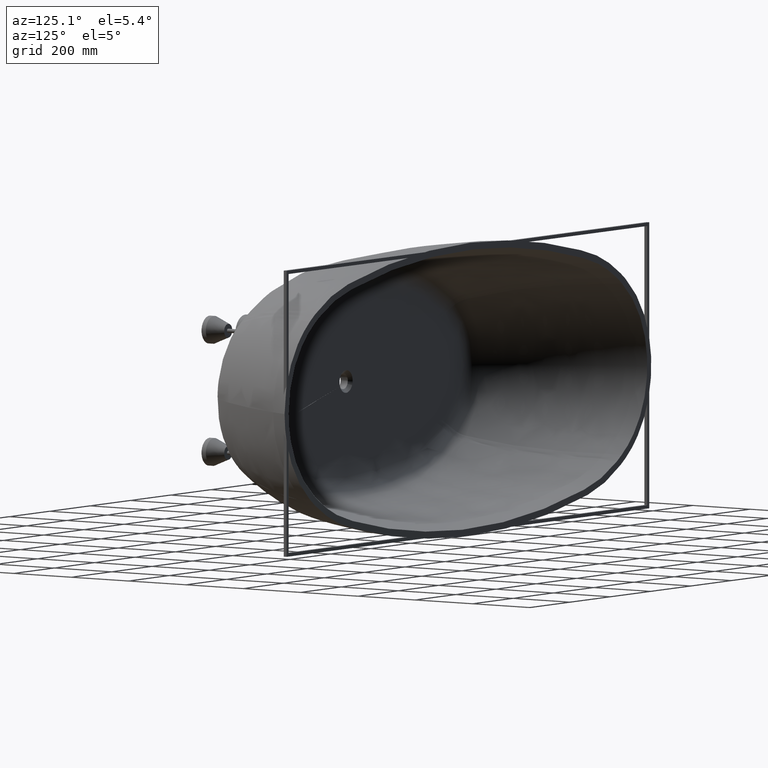
[diagram: clean part render]
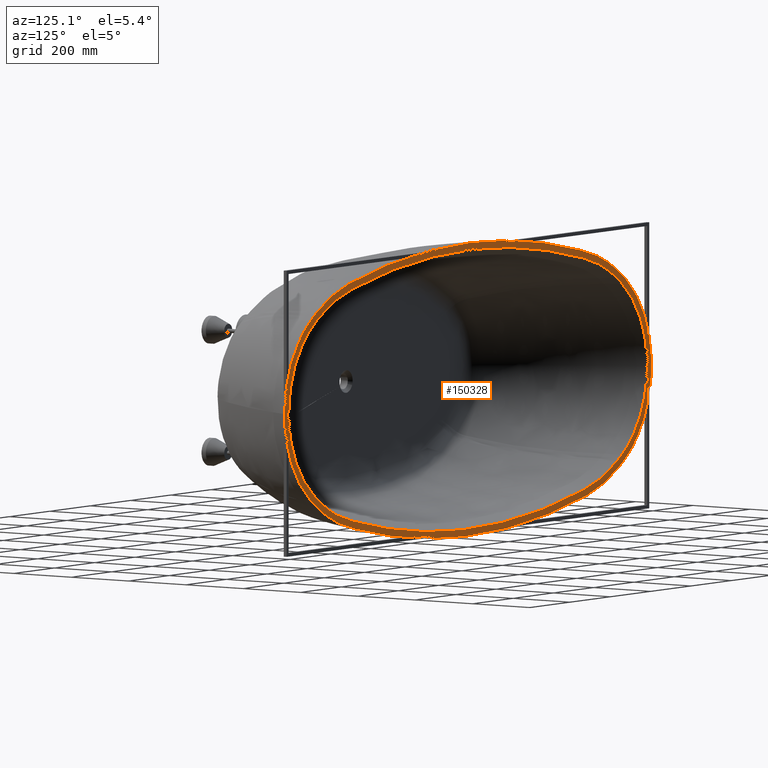
[diagram: same view with one face highlighted and labeled with its STEP entity id]
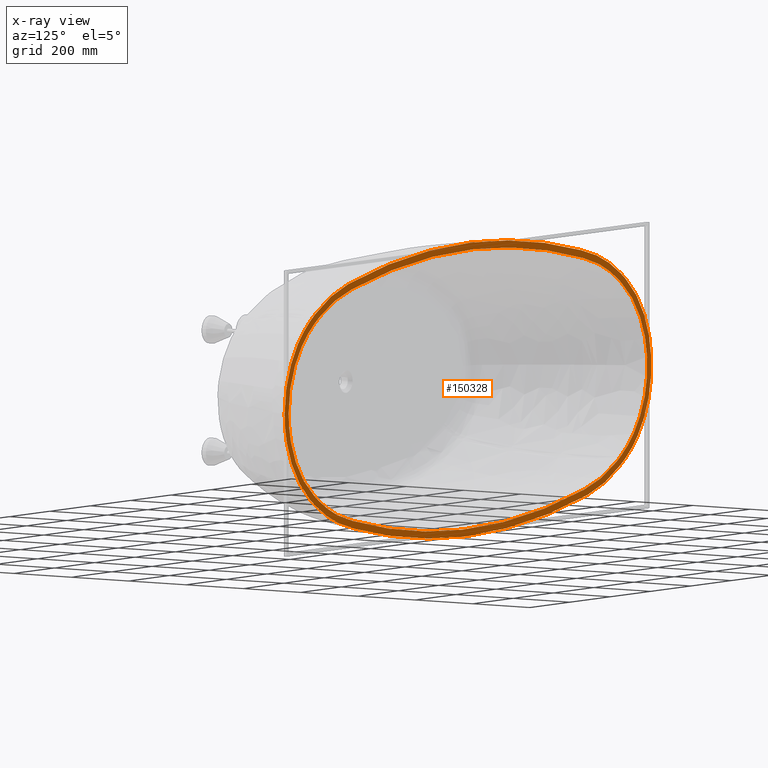
[diagram: x-ray of the same camera — body ghosted, the highlighted face saturated]
A machine part, auxiliary view. The second image highlights one B-rep face of the part: STEP entity #150328.
The next image is the same camera in x-ray: the body ghosted, the highlighted face saturated — about 0% of this face is hidden behind the body in this view.
In plain terms, the highlighted planar face has unit normal (0, 1, 0).
Its self-contained STEP definition (entity closure, byte-faithful):
#550 = CARTESIAN_POINT ( 'NONE',  ( 889.9999999999997726, 0.0000000000000000000, -7.813008401131620317 ) ) ;
#3620 = ORIENTED_EDGE ( 'NONE', *, *, #125054, .F. ) ;
#4029 = CARTESIAN_POINT ( 'NONE',  ( -587.2069341421050694, 0.0000000000000000000, -329.0705999088154385 ) ) ;
#4330 = CARTESIAN_POINT ( 'NONE',  ( 791.3905310018693626, 0.0000000000000000000, -249.7535948866556055 ) ) ;
#4470 = CARTESIAN_POINT ( 'NONE',  ( -763.1520700604692138, 0.0000000000000000000, 245.9321533621682079 ) ) ;
#4674 = CARTESIAN_POINT ( 'NONE',  ( 906.0292951633425673, 0.0000000000000000000, 50.62087967142603873 ) ) ;
#4906 = CARTESIAN_POINT ( 'NONE',  ( 319.3131465898853207, 0.0000000000000000000, -379.2608235900564182 ) ) ;
#4988 = B_SPLINE_CURVE_WITH_KNOTS ( 'NONE', 3,
 ( #57908, #140493, #112080, #98755, #166257, #31290, #4674, #17984, #112957, #126274, #29943, #59005, #34284 ),
 .UNSPECIFIED., .F., .F.,
 ( 4, 1, 1, 1, 1, 1, 1, 1, 1, 1, 4 ),
 ( 0.0000000000000000000, 0.005398302790372788706, 0.006747878487965763838, 0.008097454185558961015, 0.01012181773194864576, 0.01079660558074535537, 0.01349575697593174972, 0.05398302790372668664, 0.05735696714770960325, 0.06073090639169252680, 0.06747878487965836003 ),
 .UNSPECIFIED. ) ;
#5342 = CARTESIAN_POINT ( 'NONE',  ( 514.4941349859665252, 0.0000000000000000000, 367.6272770783308488 ) ) ;
#5637 = CARTESIAN_POINT ( 'NONE',  ( -883.2168709025518183, 0.0000000000000000000, 132.2889241970118235 ) ) ;
#6035 = CARTESIAN_POINT ( 'NONE',  ( 889.6218232531010699, 0.0000000000000000000, 17.53117531114963157 ) ) ;
#6216 = CARTESIAN_POINT ( 'NONE',  ( -432.2228156536378378, 0.0000000000000000000, 383.5637268056668745 ) ) ;
#6642 = CARTESIAN_POINT ( 'NONE',  ( 631.7350370917295095, 0.0000000000000000000, 318.0747106475319015 ) ) ;
#7077 = CARTESIAN_POINT ( 'NONE',  ( -775.0000000000001137, 0.0000000000000000000, -262.0478963853745995 ) ) ;
#7505 = CARTESIAN_POINT ( 'NONE',  ( -286.4609302756338138, 0.0000000000000000000, 383.4121656031119869 ) ) ;
#7660 = EDGE_CURVE ( 'NONE', #155108, #17808, #4988, .T. ) ;
#8179 = CARTESIAN_POINT ( 'NONE',  ( -758.1933449484882885, 0.0000000000000000000, 274.2389768462093684 ) ) ;
#8630 = CARTESIAN_POINT ( 'NONE',  ( 763.8753534057545949, 0.0000000000000000000, -270.2979495133494083 ) ) ;
#8777 = CARTESIAN_POINT ( 'NONE',  ( -600.1154229482709752, 0.0000000000000000000, -346.4837264108527961 ) ) ;
#9068 = CARTESIAN_POINT ( 'NONE',  ( 783.4307771013094452, 0.0000000000000000000, 255.8280958433930437 ) ) ;
#9544 = CARTESIAN_POINT ( 'NONE',  ( -738.4059817831089276, 0.0000000000000000000, 263.4909080596002013 ) ) ;
#9652 = CARTESIAN_POINT ( 'NONE',  ( 339.0768431634033959, 0.0000000000000000000, -396.7900770575605520 ) ) ;
#11404 = CARTESIAN_POINT ( 'NONE',  ( -769.4789590926411620, 0.0000000000000000000, -266.2335937313611112 ) ) ;
#12047 = B_SPLINE_CURVE_WITH_KNOTS ( 'NONE', 3,
 ( #138060, #16440, #70581, #124735 ),
 .UNSPECIFIED., .F., .F.,
 ( 4, 4 ),
 ( 0.5674787848796588596, 0.5698278338954969602 ),
 .UNSPECIFIED. ) ;
#13858 = CARTESIAN_POINT ( 'NONE',  ( 887.8996988289592309, 0.0000000000000000000, -35.81240038679592885 ) ) ;
#15684 = EDGE_LOOP ( 'NONE', ( #128647, #102274, #140087, #108828, #49857, #72895, #122596, #45269, #172403, #109281, #37729, #93961, #3620 ) ) ;
#16440 = CARTESIAN_POINT ( 'NONE',  ( -780.6598540475267782, 0.0000000000000000000, -257.9424528109815355 ) ) ;
#16658 = DIRECTION ( 'NONE',  ( -1.000000000000000000, 0.0000000000000000000, 3.209238430557037116E-15 ) ) ;
#17341 = CARTESIAN_POINT ( 'NONE',  ( -717.6932433290428435, 0.0000000000000000000, -276.6321071871795425 ) ) ;
#17542 = CARTESIAN_POINT ( 'NONE',  ( -777.8493932798656942, 0.0000000000000000000, 260.0163893447899568 ) ) ;
#17645 = EDGE_CURVE ( 'NONE', #64127, #96558, #110601, .T. ) ;
#17779 = CARTESIAN_POINT ( 'NONE',  ( -754.9665689504423653, 0.0000000000000000000, 252.0075134204169274 ) ) ;
#17808 = VERTEX_POINT ( 'NONE', #41168 ) ;
#17984 = CARTESIAN_POINT ( 'NONE',  ( 895.3363143709987071, 0.0000000000000000000, 113.9866341041921345 ) ) ;
#18219 = CARTESIAN_POINT ( 'NONE',  ( 160.8382427968108175, 0.0000000000000000000, -396.0654413112308703 ) ) ;
#18515 = CARTESIAN_POINT ( 'NONE',  ( 910.0000000000001137, 0.0000000000000000000, -8.041987703522320174 ) ) ;
#18657 = CARTESIAN_POINT ( 'NONE',  ( 649.6836254994555020, 0.0000000000000000000, 332.9302635221969240 ) ) ;
#18944 = CARTESIAN_POINT ( 'NONE',  ( -783.4307771013085357, 0.0000000000000000000, 255.8273457377489706 ) ) ;
#19086 = CARTESIAN_POINT ( 'NONE',  ( 737.0903473810011519, 0.0000000000000000000, -264.3621292739417754 ) ) ;
#19520 = CARTESIAN_POINT ( 'NONE',  ( -294.8353796076717117, 0.0000000000000000000, 402.5670555737781342 ) ) ;
#19951 = CARTESIAN_POINT ( 'NONE',  ( 728.1750335322358296, 0.0000000000000000000, 270.2659050836322194 ) ) ;
#20208 = CARTESIAN_POINT ( 'NONE',  ( 763.1520700604704643, 0.0000000000000000000, 245.9321533621673268 ) ) ;
#20815 = CARTESIAN_POINT ( 'NONE',  ( 3.421568584016654313E-10, 0.0000000000000000000, 403.9324184748755329 ) ) ;
#21251 = CARTESIAN_POINT ( 'NONE',  ( 749.5242002990831907, 0.0000000000000000000, -255.9563195706822114 ) ) ;
#21686 = CARTESIAN_POINT ( 'NONE',  ( -726.8271424620215839, 0.0000000000000000000, 271.0845578900930946 ) ) ;
#22095 = CARTESIAN_POINT ( 'NONE',  ( -689.3393098115927842, 0.0000000000000000000, -316.2088502245117070 ) ) ;
#22559 = CARTESIAN_POINT ( 'NONE',  ( 744.0026223081607668, 0.0000000000000000000, 259.7847781904962972 ) ) ;
#22586 = CARTESIAN_POINT ( 'NONE',  ( -863.0896100920674598, 0.0000000000000000000, 128.2270580749477631 ) ) ;
#22962 = CARTESIAN_POINT ( 'NONE',  ( 271.4381433447935024, 0.0000000000000000000, -405.2488875401405721 ) ) ;
#23250 = CARTESIAN_POINT ( 'NONE',  ( -749.5242002990929677, 0.0000000000000000000, -255.9563195706759871 ) ) ;
#23840 = CARTESIAN_POINT ( 'NONE',  ( 758.1933449484920402, 0.0000000000000000000, -274.2389768462069810 ) ) ;
#24955 = CARTESIAN_POINT ( 'NONE',  ( 760.4441334825949070, 0.0000000000000000000, 247.9878057571550585 ) ) ;
#26183 = VERTEX_POINT ( 'NONE', #97043 ) ;
#26288 = ORIENTED_EDGE ( 'NONE', *, *, #112237, .T. ) ;
#26305 = CARTESIAN_POINT ( 'NONE',  ( -769.4789590926304754, 0.0000000000000000000, 266.2335937313693535 ) ) ;
#27186 = CARTESIAN_POINT ( 'NONE',  ( 875.2561198878230471, 0.0000000000000000000, -110.6219516989343390 ) ) ;
#27710 = VERTEX_POINT ( 'NONE', #111053 ) ;
#28139 = ORIENTED_EDGE ( 'NONE', *, *, #106422, .T. ) ;
#29337 = B_SPLINE_CURVE_WITH_KNOTS ( 'NONE', 3,
 ( #51797, #105960, #160127, #38499 ),
 .UNSPECIFIED., .F., .F.,
 ( 4, 4 ),
 ( 0.9301721661045034839, 0.9325212151203412514 ),
 .UNSPECIFIED. ) ;
#29553 = CARTESIAN_POINT ( 'NONE',  ( 763.1520700604693275, 0.0000000000000000000, -245.9321533621682363 ) ) ;
#29943 = CARTESIAN_POINT ( 'NONE',  ( 802.8407740260263381, 0.0000000000000000000, 240.1346449953277045 ) ) ;
#29977 = PLANE ( 'NONE',  #163224 ) ;
#31290 = CARTESIAN_POINT ( 'NONE',  ( 907.1666489326321425, 0.0000000000000000000, 42.78032932271930378 ) ) ;
#31525 = CARTESIAN_POINT ( 'NONE',  ( -263.7253724180439463, 0.0000000000000000000, -385.9639816627826576 ) ) ;
#31562 = CARTESIAN_POINT ( 'NONE',  ( 775.0000000000003411, 0.0000000000000000000, 262.0478963853746563 ) ) ;
#31822 = CARTESIAN_POINT ( 'NONE',  ( 907.9120967166168157, 0.0000000000000000000, -36.87557192136411288 ) ) ;
#31964 = CARTESIAN_POINT ( 'NONE',  ( 747.8063397035991784, 0.0000000000000000000, 281.4433785792498952 ) ) ;
#32393 = CARTESIAN_POINT ( 'NONE',  ( 670.6584065737760056, 0.0000000000000000000, -302.7485338797424106 ) ) ;
#32502 = EDGE_CURVE ( 'NONE', #141121, #155108, #164134, .T. ) ;
#32613 = CARTESIAN_POINT ( 'NONE',  ( 754.9665689504430475, 0.0000000000000000000, 252.0075134204163305 ) ) ;
#32831 = CARTESIAN_POINT ( 'NONE',  ( 1.883701528093695288E-10, 0.0000000000000000000, 424.1328223933700770 ) ) ;
#33116 = CARTESIAN_POINT ( 'NONE',  ( -783.4307771013093316, 0.0000000000000000000, -255.8273457377484021 ) ) ;
#33515 = CARTESIAN_POINT ( 'NONE',  ( 796.8165481607913989, 0.0000000000000000000, 218.2637288915561840 ) ) ;
#33639 = EDGE_CURVE ( 'NONE', #53116, #27710, #106880, .T. ) ;
#33692 = CARTESIAN_POINT ( 'NONE',  ( -746.4369453019442062, 0.0000000000000000000, 282.3168204793840914 ) ) ;
#34118 = CARTESIAN_POINT ( 'NONE',  ( 286.4609302756594502, 0.0000000000000000000, 383.4121656031085763 ) ) ;
#34284 = CARTESIAN_POINT ( 'NONE',  ( 783.4307771013094452, 0.0000000000000000000, 255.8280958433930437 ) ) ;
#34987 = CARTESIAN_POINT ( 'NONE',  ( -631.7350370917281452, 0.0000000000000000000, 318.0747106475319583 ) ) ;
#35959 = B_SPLINE_CURVE_WITH_KNOTS ( 'NONE', 3,
 ( #42885, #97009, #151189, #29553 ),
 .UNSPECIFIED., .F., .F.,
 ( 4, 4 ),
 ( 0.9301721661045034839, 0.9325212151203412514 ),
 .UNSPECIFIED. ) ;
#36267 = CARTESIAN_POINT ( 'NONE',  ( -165.5520005130076129, 0.0000000000000000000, -415.8650200350170394 ) ) ;
#37151 = CARTESIAN_POINT ( 'NONE',  ( 735.7575132718345685, 0.0000000000000000000, -289.0545276810667588 ) ) ;
#37729 = ORIENTED_EDGE ( 'NONE', *, *, #160828, .F. ) ;
#38499 = CARTESIAN_POINT ( 'NONE',  ( 783.4307771013080810, 0.0000000000000000000, -255.8280958433941237 ) ) ;
#40505 = CARTESIAN_POINT ( 'NONE',  ( 782.5614730565411037, 0.0000000000000000000, -231.2520088400853524 ) ) ;
#40521 = CARTESIAN_POINT ( 'NONE',  ( 754.9665689504428201, 0.0000000000000000000, -252.0075134204164442 ) ) ;
#41168 = CARTESIAN_POINT ( 'NONE',  ( 783.4307771013094452, 0.0000000000000000000, 255.8280958433930437 ) ) ;
#42119 = ORIENTED_EDGE ( 'NONE', *, *, #151112, .T. ) ;
#42885 = CARTESIAN_POINT ( 'NONE',  ( 754.9665689504428201, 0.0000000000000000000, -252.0075134204164442 ) ) ;
#43506 = CARTESIAN_POINT ( 'NONE',  ( 775.0000000000000000, 0.0000000000000000000, -262.0478963853747132 ) ) ;
#44180 = CARTESIAN_POINT ( 'NONE',  ( -754.9665689504419106, 0.0000000000000000000, -252.0075134204169842 ) ) ;
#44275 = CARTESIAN_POINT ( 'NONE',  ( 783.4307771013080810, 0.0000000000000000000, -255.8280958433941237 ) ) ;
#44380 = CARTESIAN_POINT ( 'NONE',  ( 758.1933449485189840, 0.0000000000000000000, 274.2389768461886206 ) ) ;
#44858 = CARTESIAN_POINT ( 'NONE',  ( -329.4539316918798590, 0.0000000000000000000, -377.9152564980759053 ) ) ;
#45159 = CARTESIAN_POINT ( 'NONE',  ( 895.3363143709980250, 0.0000000000000000000, -113.9866341041927456 ) ) ;
#45269 = ORIENTED_EDGE ( 'NONE', *, *, #96986, .F. ) ;
#45732 = CARTESIAN_POINT ( 'NONE',  ( 583.2068326230753428, 0.0000000000000000000, -330.0477707294017478 ) ) ;
#46170 = CARTESIAN_POINT ( 'NONE',  ( 294.8353796074355273, 0.0000000000000000000, 402.5670555738147982 ) ) ;
#46454 = CARTESIAN_POINT ( 'NONE',  ( -883.2168709025482940, 0.0000000000000000000, -132.2889241970185878 ) ) ;
#46852 = CARTESIAN_POINT ( 'NONE',  ( 886.0064480515451351, 0.0000000000000000000, 49.15162373814839469 ) ) ;
#47027 = CARTESIAN_POINT ( 'NONE',  ( -649.6836254994561841, 0.0000000000000000000, 332.9302635221959576 ) ) ;
#47456 = CARTESIAN_POINT ( 'NONE',  ( 419.9756767674702473, 0.0000000000000000000, 365.3301231239591971 ) ) ;
#48331 = CARTESIAN_POINT ( 'NONE',  ( -499.9469674150249148, 0.0000000000000000000, 350.1662765972210991 ) ) ;
#48358 = CARTESIAN_POINT ( 'NONE',  ( -789.6773489195265938, 0.0000000000000000000, 227.0592726093456974 ) ) ;
#48531 = VERTEX_POINT ( 'NONE', #43506 ) ;
#49583 = CARTESIAN_POINT ( 'NONE',  ( -328.6417849886043427, 0.0000000000000000000, -398.2042012561151409 ) ) ;
#49857 = ORIENTED_EDGE ( 'NONE', *, *, #54133, .F. ) ;
#50279 = EDGE_CURVE ( 'NONE', #89344, #107960, #79520, .T. ) ;
#50448 = CARTESIAN_POINT ( 'NONE',  ( 604.2149605995716684, 0.0000000000000000000, -345.4148569647218778 ) ) ;
#51797 = CARTESIAN_POINT ( 'NONE',  ( 775.0000000000000000, 0.0000000000000000000, -262.0478963853747132 ) ) ;
#53116 = VERTEX_POINT ( 'NONE', #116197 ) ;
#54133 = EDGE_CURVE ( 'NONE', #114465, #124283, #77898, .T. ) ;
#54663 = CARTESIAN_POINT ( 'NONE',  ( 889.9999999999997726, 0.0000000000000000000, 5.030698080332740574E-14 ) ) ;
#57466 = CARTESIAN_POINT ( 'NONE',  ( -763.1520700604693275, 0.0000000000000000000, -245.9321533621679521 ) ) ;
#57541 = EDGE_CURVE ( 'NONE', #161668, #114465, #168930, .T. ) ;
#57667 = CARTESIAN_POINT ( 'NONE',  ( 775.0000000000003411, 0.0000000000000000000, 262.0478963853746563 ) ) ;
#57908 = CARTESIAN_POINT ( 'NONE',  ( 910.0000000000001137, 0.0000000000000000000, -1.387778780781445676E-14 ) ) ;
#58141 = CARTESIAN_POINT ( 'NONE',  ( -583.2068326230723869, 0.0000000000000000000, -330.0477707294020320 ) ) ;
#58437 = CARTESIAN_POINT ( 'NONE',  ( 802.8407740260239507, 0.0000000000000000000, -240.1346449953288129 ) ) ;
#59005 = CARTESIAN_POINT ( 'NONE',  ( 791.3905310018714090, 0.0000000000000000000, 249.7535948866545823 ) ) ;
#59026 = CARTESIAN_POINT ( 'NONE',  ( 329.4539316918697978, 0.0000000000000000000, -377.9152564980772127 ) ) ;
#59463 = CARTESIAN_POINT ( 'NONE',  ( 432.2228156534974914, 0.0000000000000000000, 383.5637268056955236 ) ) ;
#59749 = CARTESIAN_POINT ( 'NONE',  ( -904.1549730925355561, 0.0000000000000000000, 70.19633892110206830 ) ) ;
#60152 = CARTESIAN_POINT ( 'NONE',  ( 888.6151156526157138, 0.0000000000000000000, 29.09297547376566584 ) ) ;
#60329 = CARTESIAN_POINT ( 'NONE',  ( -514.4941349859661841, 0.0000000000000000000, 367.6272770783294845 ) ) ;
#60762 = CARTESIAN_POINT ( 'NONE',  ( 587.2069341421073432, 0.0000000000000000000, 329.0705999088153249 ) ) ;
#61073 = B_SPLINE_CURVE_WITH_KNOTS ( 'NONE', 3,
 ( #93758, #147939, #26305, #80421 ),
 .UNSPECIFIED., .F., .F.,
 ( 4, 4 ),
 ( 0.4255214128532844864, 0.4301721661045039280 ),
 .UNSPECIFIED. ) ;
#61635 = CARTESIAN_POINT ( 'NONE',  ( -319.3131465898812280, 0.0000000000000000000, 379.2608235900573845 ) ) ;
#62324 = CARTESIAN_POINT ( 'NONE',  ( -884.1175909659926901, 0.0000000000000000000, 68.19584851435453743 ) ) ;
#62757 = CARTESIAN_POINT ( 'NONE',  ( 769.4789590926322944, 0.0000000000000000000, -266.2335937313684440 ) ) ;
#62903 = CARTESIAN_POINT ( 'NONE',  ( -514.4941349859641377, 0.0000000000000000000, -367.6272770783298256 ) ) ;
#63188 = CARTESIAN_POINT ( 'NONE',  ( 780.6598540475268919, 0.0000000000000000000, 257.9427309127087824 ) ) ;
#63662 = CARTESIAN_POINT ( 'NONE',  ( -744.0026223081408716, 0.0000000000000000000, 259.7847781905100533 ) ) ;
#63768 = CARTESIAN_POINT ( 'NONE',  ( 432.2228156536407369, 0.0000000000000000000, -383.5637268056659650 ) ) ;
#64127 = VERTEX_POINT ( 'NONE', #154262 ) ;
#64444 = VERTEX_POINT ( 'NONE', #32613 ) ;
#65043 = CARTESIAN_POINT ( 'NONE',  ( -758.1933449485205756, 0.0000000000000000000, -274.2389768461865742 ) ) ;
#65135 = VERTEX_POINT ( 'NONE', #140935 ) ;
#65532 = CARTESIAN_POINT ( 'NONE',  ( -763.8753534057736942, 0.0000000000000000000, -270.2979495133355385 ) ) ;
#66537 = EDGE_CURVE ( 'NONE', #134032, #124955, #61073, .T. ) ;
#67995 = CARTESIAN_POINT ( 'NONE',  ( 888.6151156526157138, 0.0000000000000000000, -29.09297547376572979 ) ) ;
#70579 = EDGE_CURVE ( 'NONE', #151074, #92448, #156359, .T. ) ;
#70581 = CARTESIAN_POINT ( 'NONE',  ( -777.8493932798661490, 0.0000000000000000000, -260.0163893447896726 ) ) ;
#70798 = CARTESIAN_POINT ( 'NONE',  ( 889.9999999999997726, 0.0000000000000000000, 5.030698080332740574E-14 ) ) ;
#71475 = CARTESIAN_POINT ( 'NONE',  ( -670.6584065737750961, 0.0000000000000000000, -302.7485338797417853 ) ) ;
#71677 = CARTESIAN_POINT ( 'NONE',  ( -780.6598540475260961, 0.0000000000000000000, 257.9424528109819335 ) ) ;
#71914 = CARTESIAN_POINT ( 'NONE',  ( -757.7154549982997196, 0.0000000000000000000, 250.0130108742785069 ) ) ;
#72348 = CARTESIAN_POINT ( 'NONE',  ( 263.7253724180339987, 0.0000000000000000000, -385.9639816627836240 ) ) ;
#72642 = CARTESIAN_POINT ( 'NONE',  ( 910.0000000000001137, 0.0000000000000000000, -1.387778780781445676E-14 ) ) ;
#72730 = EDGE_CURVE ( 'NONE', #65135, #53116, #94914, .T. ) ;
#72785 = CARTESIAN_POINT ( 'NONE',  ( 604.2149605995709862, 0.0000000000000000000, 345.4148569647225031 ) ) ;
#72788 = CARTESIAN_POINT ( 'NONE',  ( 758.1933449485189840, 0.0000000000000000000, 274.2389768461886206 ) ) ;
#72895 = ORIENTED_EDGE ( 'NONE', *, *, #57541, .F. ) ;
#73026 = EDGE_LOOP ( 'NONE', ( #26288, #113600, #124346, #141987, #142456, #129653, #28139, #127572, #42119, #113202, #115127, #167034, #111907 ) ) ;
#73081 = CARTESIAN_POINT ( 'NONE',  ( -809.9632901031801566, 0.0000000000000000000, 235.5744896202533596 ) ) ;
#73224 = CARTESIAN_POINT ( 'NONE',  ( 738.4059817831131340, 0.0000000000000000000, -263.4909080595970181 ) ) ;
#73234 = VERTEX_POINT ( 'NONE', #157494 ) ;
#73336 = B_SPLINE_CURVE_WITH_KNOTS ( 'NONE', 3,
 ( #57466, #111639, #165813, #44180 ),
 .UNSPECIFIED., .F., .F.,
 ( 4, 4 ),
 ( 0.5674787848796588596, 0.5698278338954969602 ),
 .UNSPECIFIED. ) ;
#73376 = EDGE_CURVE ( 'NONE', #64444, #65135, #120900, .T. ) ;
#73481 = CARTESIAN_POINT ( 'NONE',  ( 889.9999999999997726, 0.0000000000000000000, 5.030698080332740574E-14 ) ) ;
#73657 = CARTESIAN_POINT ( 'NONE',  ( -328.6417849888144360, 0.0000000000000000000, 398.2042012560812054 ) ) ;
#74088 = CARTESIAN_POINT ( 'NONE',  ( 717.6932433290425024, 0.0000000000000000000, 276.6321071871803383 ) ) ;
#74953 = CARTESIAN_POINT ( 'NONE',  ( -160.8382427968112438, 0.0000000000000000000, 396.0654413112307566 ) ) ;
#75384 = CARTESIAN_POINT ( 'NONE',  ( 754.9665689504428201, 0.0000000000000000000, -252.0075134204164442 ) ) ;
#75511 = B_SPLINE_CURVE_WITH_KNOTS ( 'NONE', 3,
 ( #153612, #31964, #86097, #140284, #18657, #72785, #126942, #5342, #59463, #113629, #167797, #46170, #100303, #154479, #32831, #86963, #141149, #19520, #73657, #127804, #6216, #60329, #114494, #168659, #47027, #101164, #155338, #33692, #87830, #142016 ),
 .UNSPECIFIED., .F., .F.,
 ( 4, 2, 2, 2, 2, 2, 2, 1, 2, 2, 2, 2, 2, 2, 1, 4 ),
 ( 0.07447858714670785307, 0.08298040455451123620, 0.1118252206610561572, 0.1146707433340537763, 0.1710262600804101085, 0.1781307950221866498, 0.1940285449815298269, 0.2499999999999999722, 0.3059714550184710613, 0.3218692049778052455, 0.3289737399195896694, 0.3853292566659466400, 0.3881747793389446199, 0.4170195954454887222, 0.4244281336001926030, 0.4255214128532844864 ),
 .UNSPECIFIED. ) ;
#75817 = CARTESIAN_POINT ( 'NONE',  ( -737.0903473809985371, 0.0000000000000000000, 264.3621292739439923 ) ) ;
#75979 = EDGE_CURVE ( 'NONE', #81620, #26183, #35959, .T. ) ;
#76221 = CARTESIAN_POINT ( 'NONE',  ( -649.6836254994561841, 0.0000000000000000000, -332.9302635221961850 ) ) ;
#76506 = CARTESIAN_POINT ( 'NONE',  ( -774.9999999999998863, 0.0000000000000000000, 262.0478963853747700 ) ) ;
#76685 = CARTESIAN_POINT ( 'NONE',  ( 738.4059817831379178, 0.0000000000000000000, 263.4909080595801925 ) ) ;
#76875 = B_SPLINE_CURVE_WITH_KNOTS ( 'NONE', 3,
 ( #144871, #23250, #77376, #131544 ),
 .UNSPECIFIED., .F., .F.,
 ( 4, 4 ),
 ( 0.5698278338954969602, 0.5744785871467075200 ),
 .UNSPECIFIED. ) ;
#77086 = CARTESIAN_POINT ( 'NONE',  ( 294.8353796076738718, 0.0000000000000000000, -402.5670555737783047 ) ) ;
#77376 = CARTESIAN_POINT ( 'NONE',  ( -744.0026223081613352, 0.0000000000000000000, -259.7847781904955013 ) ) ;
#77898 = B_SPLINE_CURVE_WITH_KNOTS ( 'NONE', 3,
 ( #170373, #89531, #143718, #22095, #76221, #130384, #8777, #62903, #117062, #171238, #49583, #103729, #157895, #36267, #90390, #144580, #22962, #77086, #131253, #9652, #63768, #117943, #172118, #50448, #104604, #158775, #37151, #91268, #145458, #23840 ),
 .UNSPECIFIED., .F., .F.,
 ( 4, 2, 2, 2, 2, 2, 2, 1, 2, 2, 2, 2, 2, 2, 1, 4 ),
 ( 0.5744785871467075200, 0.5829804045545111668, 0.6118252206610563793, 0.6146707433340542481, 0.6710262600804102195, 0.6781307950221867609, 0.6940285449815295493, 0.7499999999999941158, 0.8059714550184705617, 0.8218692049778056896, 0.8289737399195898915, 0.8853292566659464180, 0.8881747793389440648, 0.9170195954454888332, 0.9244281336001918259, 0.9255214128532850415 ),
 .UNSPECIFIED. ) ;
#79077 = CARTESIAN_POINT ( 'NONE',  ( 757.7154549983007428, 0.0000000000000000000, 250.0130108742777395 ) ) ;
#79520 = B_SPLINE_CURVE_WITH_KNOTS ( 'NONE', 3,
 ( #57667, #111840, #166018, #44380 ),
 .UNSPECIFIED., .F., .F.,
 ( 4, 4 ),
 ( 0.06982783389549643283, 0.07447858714670785307 ),
 .UNSPECIFIED. ) ;
#80421 = CARTESIAN_POINT ( 'NONE',  ( -774.9999999999998863, 0.0000000000000000000, 262.0478963853747700 ) ) ;
#81296 = CARTESIAN_POINT ( 'NONE',  ( 886.0064480515453624, 0.0000000000000000000, -49.15162373814861496 ) ) ;
#81620 = VERTEX_POINT ( 'NONE', #40521 ) ;
#84102 = CARTESIAN_POINT ( 'NONE',  ( 910.0000000000001137, 0.0000000000000000000, -1.387778780781445676E-14 ) ) ;
#84781 = CARTESIAN_POINT ( 'NONE',  ( -738.4059817831401915, 0.0000000000000000000, -263.4909080595790556 ) ) ;
#85661 = CARTESIAN_POINT ( 'NONE',  ( -160.8382427974896416, 0.0000000000000000000, -396.0654413111638519 ) ) ;
#85958 = CARTESIAN_POINT ( 'NONE',  ( 908.6234101523943991, 0.0000000000000000000, -29.95410958223365938 ) ) ;
#86097 = CARTESIAN_POINT ( 'NONE',  ( 737.1573301948030803, 0.0000000000000000000, 288.2356446266927605 ) ) ;
#86530 = CARTESIAN_POINT ( 'NONE',  ( 716.3163531957522991, 0.0000000000000000000, -277.3966351989786858 ) ) ;
#86963 = CARTESIAN_POINT ( 'NONE',  ( -165.5520005126332990, 0.0000000000000000000, 415.8650200350557498 ) ) ;
#87001 = EDGE_CURVE ( 'NONE', #150333, #104821, #133470, .T. ) ;
#87649 = CARTESIAN_POINT ( 'NONE',  ( 782.5614730565406489, 0.0000000000000000000, 231.2520088400843861 ) ) ;
#87830 = CARTESIAN_POINT ( 'NONE',  ( -756.8576426167012414, 0.0000000000000000000, 275.1654167552181889 ) ) ;
#88257 = CARTESIAN_POINT ( 'NONE',  ( 263.7253724180449126, 0.0000000000000000000, 385.9639816627829418 ) ) ;
#88698 = CARTESIAN_POINT ( 'NONE',  ( 738.4059817831131340, 0.0000000000000000000, -263.4909080595970181 ) ) ;
#89129 = CARTESIAN_POINT ( 'NONE',  ( -670.6584065737737319, 0.0000000000000000000, 302.7485338797433201 ) ) ;
#89344 = VERTEX_POINT ( 'NONE', #31562 ) ;
#89531 = CARTESIAN_POINT ( 'NONE',  ( -747.8063397035983826, 0.0000000000000000000, -281.4433785792480762 ) ) ;
#89990 = CARTESIAN_POINT ( 'NONE',  ( 754.9665689504430475, 0.0000000000000000000, 252.0075134204163305 ) ) ;
#90390 = CARTESIAN_POINT ( 'NONE',  ( -1.889217948747301534E-10, 0.0000000000000000000, -424.1328223933698496 ) ) ;
#91268 = CARTESIAN_POINT ( 'NONE',  ( 746.4369453019448883, 0.0000000000000000000, -282.3168204793826135 ) ) ;
#92448 = VERTEX_POINT ( 'NONE', #141646 ) ;
#93758 = CARTESIAN_POINT ( 'NONE',  ( -758.1933449484882885, 0.0000000000000000000, 274.2389768462093684 ) ) ;
#93961 = ORIENTED_EDGE ( 'NONE', *, *, #50279, .F. ) ;
#94230 = B_SPLINE_CURVE_WITH_KNOTS ( 'NONE', 3,
 ( #17779, #71914, #126071, #4470 ),
 .UNSPECIFIED., .F., .F.,
 ( 4, 4 ),
 ( 0.4301721661045039280, 0.4325212151203419175 ),
 .UNSPECIFIED. ) ;
#94636 = CARTESIAN_POINT ( 'NONE',  ( 796.8165481607926495, 0.0000000000000000000, -218.2637288915571503 ) ) ;
#94734 = B_SPLINE_CURVE_WITH_KNOTS ( 'NONE', 3,
 ( #139167, #17542, #71677, #125837 ),
 .UNSPECIFIED., .F., .F.,
 ( 4, 4 ),
 ( 0.4301721661045039280, 0.4325212151203419175 ),
 .UNSPECIFIED. ) ;
#94914 = B_SPLINE_CURVE_WITH_KNOTS ( 'NONE', 3,
 ( #141583, #19951, #74088, #128235, #6642, #60762, #114922, #169092, #47456, #101594, #155762, #34118, #88257, #142445, #20815, #74953, #129102, #7505, #61635, #115790, #169967, #48331, #102463, #156631, #34987, #89129, #143314, #21686, #75817, #129978 ),
 .UNSPECIFIED., .F., .F.,
 ( 4, 2, 2, 2, 2, 2, 2, 1, 2, 2, 2, 2, 2, 2, 1, 4 ),
 ( 0.07447858714670781144, 0.08298040455451119457, 0.1118252206610561295, 0.1146707433340537485, 0.1710262600804100530, 0.1781307950221866498, 0.1940285449815297714, 0.2499999999999999445, 0.3059714550184710613, 0.3218692049778053010, 0.3289737399195896694, 0.3853292566659466400, 0.3881747793389446199, 0.4170195954454887222, 0.4244281336001926030, 0.4255214128532844864 ),
 .UNSPECIFIED. ) ;
#96558 = VERTEX_POINT ( 'NONE', #126357 ) ;
#96986 = EDGE_CURVE ( 'NONE', #100108, #101907, #115296, .T. ) ;
#97009 = CARTESIAN_POINT ( 'NONE',  ( 757.7154549983002880, 0.0000000000000000000, -250.0130108742781943 ) ) ;
#97043 = CARTESIAN_POINT ( 'NONE',  ( 763.1520700604693275, 0.0000000000000000000, -245.9321533621682363 ) ) ;
#97436 = FACE_BOUND ( 'NONE', #73026, .T. ) ;
#98755 = CARTESIAN_POINT ( 'NONE',  ( 908.6234101523943991, 0.0000000000000000000, 29.95410958223345688 ) ) ;
#98990 = CARTESIAN_POINT ( 'NONE',  ( -319.3131465899062391, 0.0000000000000000000, -379.2608235900536329 ) ) ;
#99290 = CARTESIAN_POINT ( 'NONE',  ( 906.0292951633425673, 0.0000000000000000000, -50.62087967142643663 ) ) ;
#99479 = CARTESIAN_POINT ( 'NONE',  ( -863.0896100920641629, 0.0000000000000000000, -128.2270580749544138 ) ) ;
#99866 = CARTESIAN_POINT ( 'NONE',  ( 587.2069341421077979, 0.0000000000000000000, -329.0705999088151543 ) ) ;
#100108 = VERTEX_POINT ( 'NONE', #174008 ) ;
#100303 = CARTESIAN_POINT ( 'NONE',  ( 271.4381433445295215, 0.0000000000000000000, 405.2488875401784298 ) ) ;
#100585 = CARTESIAN_POINT ( 'NONE',  ( -853.0307203375070912, 0.0000000000000000000, -190.4177060471823779 ) ) ;
#100985 = CARTESIAN_POINT ( 'NONE',  ( 875.2561198878219102, 0.0000000000000000000, 110.6219516989339269 ) ) ;
#101164 = CARTESIAN_POINT ( 'NONE',  ( -689.3393098115888051, 0.0000000000000000000, 316.2088502245130712 ) ) ;
#101416 = CARTESIAN_POINT ( 'NONE',  ( -884.1175909659924628, 0.0000000000000000000, -68.19584851435422479 ) ) ;
#101594 = CARTESIAN_POINT ( 'NONE',  ( 329.4539316918818486, 0.0000000000000000000, 377.9152564980757347 ) ) ;
#101907 = VERTEX_POINT ( 'NONE', #161577 ) ;
#102274 = ORIENTED_EDGE ( 'NONE', *, *, #32502, .F. ) ;
#102463 = CARTESIAN_POINT ( 'NONE',  ( -583.2068326230742059, 0.0000000000000000000, 330.0477707294019751 ) ) ;
#103729 = CARTESIAN_POINT ( 'NONE',  ( -294.8353796074343904, 0.0000000000000000000, -402.5670555738142298 ) ) ;
#104604 = CARTESIAN_POINT ( 'NONE',  ( 649.6836254994556157, 0.0000000000000000000, -332.9302635221962987 ) ) ;
#104821 = VERTEX_POINT ( 'NONE', #154361 ) ;
#105801 = CARTESIAN_POINT ( 'NONE',  ( -832.7984664122263894, 0.0000000000000000000, 184.2106301342249139 ) ) ;
#105960 = CARTESIAN_POINT ( 'NONE',  ( 777.8493932798654669, 0.0000000000000000000, -260.0163893447900705 ) ) ;
#105985 = B_SPLINE_CURVE_WITH_KNOTS ( 'NONE', 3,
 ( #146589, #24955, #79077, #133257 ),
 .UNSPECIFIED., .F., .F.,
 ( 4, 4 ),
 ( 0.06747878487965836003, 0.06982783389549643283 ),
 .UNSPECIFIED. ) ;
#106422 = EDGE_CURVE ( 'NONE', #27710, #64127, #94230, .T. ) ;
#106880 = B_SPLINE_CURVE_WITH_KNOTS ( 'NONE', 3,
 ( #9544, #63662, #117834, #172010 ),
 .UNSPECIFIED., .F., .F.,
 ( 4, 4 ),
 ( 0.4255214128532844864, 0.4301721661045039280 ),
 .UNSPECIFIED. ) ;
#107125 = CARTESIAN_POINT ( 'NONE',  ( 783.4307771013080810, 0.0000000000000000000, -255.8280958433941237 ) ) ;
#107319 = B_SPLINE_CURVE_WITH_KNOTS ( 'NONE', 3,
 ( #130236, #8630, #62757, #116918 ),
 .UNSPECIFIED., .F., .F.,
 ( 4, 4 ),
 ( 0.9255214128532850415, 0.9301721661045034839 ),
 .UNSPECIFIED. ) ;
#107960 = VERTEX_POINT ( 'NONE', #72788 ) ;
#108828 = ORIENTED_EDGE ( 'NONE', *, *, #140109, .F. ) ;
#109281 = ORIENTED_EDGE ( 'NONE', *, *, #66537, .F. ) ;
#110548 = CARTESIAN_POINT ( 'NONE',  ( 910.0000000000001137, 0.0000000000000000000, -1.387778780781445676E-14 ) ) ;
#110601 = B_SPLINE_CURVE_WITH_KNOTS ( 'NONE', 3,
 ( #152779, #48358, #105801, #22586, #62324, #135929, #101416, #99479, #124363, #145077, #138775 ),
 .UNSPECIFIED., .F., .F.,
 ( 4, 1, 1, 1, 1, 1, 1, 1, 4 ),
 ( 0.4325212151203419175, 0.4550141434135613894, 0.4748093778667312193, 0.4775070717067808612, 0.4999999999963563035, 0.5224929282932199159, 0.5251906221332697244, 0.5449858565864393878, 0.5674787848796588596 ),
 .UNSPECIFIED. ) ;
#111053 = CARTESIAN_POINT ( 'NONE',  ( -754.9665689504423653, 0.0000000000000000000, 252.0075134204169274 ) ) ;
#111417 = CARTESIAN_POINT ( 'NONE',  ( 758.1933449484920402, 0.0000000000000000000, -274.2389768462069810 ) ) ;
#111639 = CARTESIAN_POINT ( 'NONE',  ( -760.4441334825937702, 0.0000000000000000000, -247.9878057571555985 ) ) ;
#111840 = CARTESIAN_POINT ( 'NONE',  ( 769.4789590926411620, 0.0000000000000000000, 266.2335937313620775 ) ) ;
#111907 = ORIENTED_EDGE ( 'NONE', *, *, #75979, .T. ) ;
#112080 = CARTESIAN_POINT ( 'NONE',  ( 909.6242265288555018, 0.0000000000000000000, 18.04673948242881210 ) ) ;
#112237 = EDGE_CURVE ( 'NONE', #26183, #150333, #113099, .T. ) ;
#112317 = CARTESIAN_POINT ( 'NONE',  ( -499.9469674150244600, 0.0000000000000000000, -350.1662765972206444 ) ) ;
#112613 = CARTESIAN_POINT ( 'NONE',  ( 817.0859515851785773, 0.0000000000000000000, -226.3785214334296256 ) ) ;
#112957 = CARTESIAN_POINT ( 'NONE',  ( 864.5096319821501538, 0.0000000000000000000, 176.1575523908364005 ) ) ;
#113099 = B_SPLINE_CURVE_WITH_KNOTS ( 'NONE', 3,
 ( #147067, #162144, #40505, #94636, #148817, #27186, #81296, #135467, #13858, #67995, #122147, #550, #54663 ),
 .UNSPECIFIED., .F., .F.,
 ( 4, 1, 1, 1, 1, 1, 1, 1, 1, 1, 4 ),
 ( 0.9325212151203412514, 0.9392690936083071263, 0.9426430328522901192, 0.9460169720962730011, 0.9865042430240682503, 0.9892033944192546446, 0.9898781822680511322, 0.9919025458144409280, 0.9932521215120341251, 0.9946016972096273223, 1.000000000000000000 ),
 .UNSPECIFIED. ) ;
#113191 = CARTESIAN_POINT ( 'NONE',  ( 419.9756767674696221, 0.0000000000000000000, -365.3301231239580602 ) ) ;
#113202 = ORIENTED_EDGE ( 'NONE', *, *, #126474, .T. ) ;
#113600 = ORIENTED_EDGE ( 'NONE', *, *, #87001, .T. ) ;
#113629 = CARTESIAN_POINT ( 'NONE',  ( 339.0768431631884710, 0.0000000000000000000, 396.7900770575964771 ) ) ;
#113919 = CARTESIAN_POINT ( 'NONE',  ( -915.2190759881196982, 0.0000000000000000000, 5.687724596858956261E-13 ) ) ;
#114316 = CARTESIAN_POINT ( 'NONE',  ( 887.8996988289593446, 0.0000000000000000000, 35.81240038679539595 ) ) ;
#114465 = VERTEX_POINT ( 'NONE', #65043 ) ;
#114494 = CARTESIAN_POINT ( 'NONE',  ( -600.1154229482730216, 0.0000000000000000000, 346.4837264108523414 ) ) ;
#114922 = CARTESIAN_POINT ( 'NONE',  ( 583.2068326230750017, 0.0000000000000000000, 330.0477707294019183 ) ) ;
#115127 = ORIENTED_EDGE ( 'NONE', *, *, #70579, .T. ) ;
#115296 = B_SPLINE_CURVE_WITH_KNOTS ( 'NONE', 3,
 ( #18944, #73081, #127231, #5637, #59749, #113919, #168084, #46454, #100585, #154766, #33116 ),
 .UNSPECIFIED., .F., .F.,
 ( 4, 1, 1, 1, 1, 1, 1, 1, 4 ),
 ( 0.4325212151203419175, 0.4550141434135613894, 0.4748093778667312193, 0.4775070717067808612, 0.4999999999963563035, 0.5224929282932199159, 0.5251906221332697244, 0.5449858565864393878, 0.5674787848796588596 ),
 .UNSPECIFIED. ) ;
#115790 = CARTESIAN_POINT ( 'NONE',  ( -329.4539316918658187, 0.0000000000000000000, 377.9152564980782358 ) ) ;
#116197 = CARTESIAN_POINT ( 'NONE',  ( -738.4059817831089276, 0.0000000000000000000, 263.4909080596002013 ) ) ;
#116918 = CARTESIAN_POINT ( 'NONE',  ( 775.0000000000000000, 0.0000000000000000000, -262.0478963853747132 ) ) ;
#117062 = CARTESIAN_POINT ( 'NONE',  ( -432.2228156534966388, 0.0000000000000000000, -383.5637268056966036 ) ) ;
#117353 = CARTESIAN_POINT ( 'NONE',  ( 777.8493932798664900, 0.0000000000000000000, 260.0163893447898431 ) ) ;
#117834 = CARTESIAN_POINT ( 'NONE',  ( -749.5242002990822812, 0.0000000000000000000, 255.9563195706835472 ) ) ;
#117943 = CARTESIAN_POINT ( 'NONE',  ( 514.4941349859660704, 0.0000000000000000000, -367.6272770783297119 ) ) ;
#119704 = CARTESIAN_POINT ( 'NONE',  ( -758.1933449485205756, 0.0000000000000000000, -274.2389768461865742 ) ) ;
#120900 = B_SPLINE_CURVE_WITH_KNOTS ( 'NONE', 3,
 ( #89990, #144178, #22559, #76685 ),
 .UNSPECIFIED., .F., .F.,
 ( 4, 4 ),
 ( 0.06982783389549643283, 0.07447858714670781144 ),
 .UNSPECIFIED. ) ;
#122147 = CARTESIAN_POINT ( 'NONE',  ( 889.6218232531010699, 0.0000000000000000000, -17.53117531114953209 ) ) ;
#122408 = B_SPLINE_CURVE_WITH_KNOTS ( 'NONE', 3,
 ( #88698, #142882, #21251, #75384 ),
 .UNSPECIFIED., .F., .F.,
 ( 4, 4 ),
 ( 0.9255214128532850415, 0.9301721661045034839 ),
 .UNSPECIFIED. ) ;
#122596 = ORIENTED_EDGE ( 'NONE', *, *, #156382, .F. ) ;
#124283 = VERTEX_POINT ( 'NONE', #111417 ) ;
#124346 = ORIENTED_EDGE ( 'NONE', *, *, #128476, .T. ) ;
#124363 = CARTESIAN_POINT ( 'NONE',  ( -832.7984664122255936, 0.0000000000000000000, -184.2106301342247150 ) ) ;
#124735 = CARTESIAN_POINT ( 'NONE',  ( -775.0000000000001137, 0.0000000000000000000, -262.0478963853745995 ) ) ;
#124953 = CARTESIAN_POINT ( 'NONE',  ( -738.4059817831401915, 0.0000000000000000000, -263.4909080595790556 ) ) ;
#124955 = VERTEX_POINT ( 'NONE', #76506 ) ;
#125054 = EDGE_CURVE ( 'NONE', #17808, #89344, #138228, .T. ) ;
#125632 = CARTESIAN_POINT ( 'NONE',  ( -631.7350370917281452, 0.0000000000000000000, -318.0747106475320152 ) ) ;
#125837 = CARTESIAN_POINT ( 'NONE',  ( -783.4307771013085357, 0.0000000000000000000, 255.8273457377489706 ) ) ;
#126071 = CARTESIAN_POINT ( 'NONE',  ( -760.4441334825937702, 0.0000000000000000000, 247.9878057571557690 ) ) ;
#126274 = CARTESIAN_POINT ( 'NONE',  ( 817.0859515851816468, 0.0000000000000000000, 226.3785214334284603 ) ) ;
#126357 = CARTESIAN_POINT ( 'NONE',  ( -763.1520700604693275, 0.0000000000000000000, -245.9321533621679521 ) ) ;
#126474 = EDGE_CURVE ( 'NONE', #73234, #151074, #76875, .T. ) ;
#126508 = CARTESIAN_POINT ( 'NONE',  ( 286.4609302756375655, 0.0000000000000000000, -383.4121656031111911 ) ) ;
#126942 = CARTESIAN_POINT ( 'NONE',  ( 600.1154229482725668, 0.0000000000000000000, 346.4837264108527961 ) ) ;
#127231 = CARTESIAN_POINT ( 'NONE',  ( -853.0307203375073186, 0.0000000000000000000, 190.4177060471824916 ) ) ;
#127572 = ORIENTED_EDGE ( 'NONE', *, *, #17645, .T. ) ;
#127626 = CARTESIAN_POINT ( 'NONE',  ( 889.9999999999998863, 0.0000000000000000000, 7.813008401131882330 ) ) ;
#127804 = CARTESIAN_POINT ( 'NONE',  ( -339.0768431634004969, 0.0000000000000000000, 396.7900770575612910 ) ) ;
#128235 = CARTESIAN_POINT ( 'NONE',  ( 670.6584065737737319, 0.0000000000000000000, 302.7485338797420127 ) ) ;
#128476 = EDGE_CURVE ( 'NONE', #104821, #64444, #105985, .T. ) ;
#128647 = ORIENTED_EDGE ( 'NONE', *, *, #7660, .F. ) ;
#129102 = CARTESIAN_POINT ( 'NONE',  ( -263.7253724180320660, 0.0000000000000000000, 385.9639816627843061 ) ) ;
#129653 = ORIENTED_EDGE ( 'NONE', *, *, #33639, .T. ) ;
#129978 = CARTESIAN_POINT ( 'NONE',  ( -738.4059817831089276, 0.0000000000000000000, 263.4909080596002013 ) ) ;
#130236 = CARTESIAN_POINT ( 'NONE',  ( 758.1933449484920402, 0.0000000000000000000, -274.2389768462069810 ) ) ;
#130384 = CARTESIAN_POINT ( 'NONE',  ( -604.2149605995699631, 0.0000000000000000000, -345.4148569647223894 ) ) ;
#131253 = CARTESIAN_POINT ( 'NONE',  ( 328.6417849888175624, 0.0000000000000000000, -398.2042012560802391 ) ) ;
#131544 = CARTESIAN_POINT ( 'NONE',  ( -738.4059817831401915, 0.0000000000000000000, -263.4909080595790556 ) ) ;
#133016 = CARTESIAN_POINT ( 'NONE',  ( -775.0000000000001137, 0.0000000000000000000, -262.0478963853745995 ) ) ;
#133257 = CARTESIAN_POINT ( 'NONE',  ( 754.9665689504430475, 0.0000000000000000000, 252.0075134204163305 ) ) ;
#133470 = B_SPLINE_CURVE_WITH_KNOTS ( 'NONE', 3,
 ( #73481, #127626, #6035, #60152, #114316, #168478, #46852, #100985, #155163, #33515, #87649, #141840, #20208 ),
 .UNSPECIFIED., .F., .F.,
 ( 4, 1, 1, 1, 1, 1, 1, 1, 1, 1, 4 ),
 ( 0.0000000000000000000, 0.005398302790372788706, 0.006747878487965763838, 0.008097454185558961015, 0.01012181773194864576, 0.01079660558074535537, 0.01349575697593174972, 0.05398302790372668664, 0.05735696714770960325, 0.06073090639169252680, 0.06747878487965836003 ),
 .UNSPECIFIED. ) ;
#134032 = VERTEX_POINT ( 'NONE', #8179 ) ;
#135467 = CARTESIAN_POINT ( 'NONE',  ( 887.1500567346485013, 0.0000000000000000000, -41.54342495496725718 ) ) ;
#135929 = CARTESIAN_POINT ( 'NONE',  ( -895.2524548180397232, 0.0000000000000000000, 2.455080812188972557E-13 ) ) ;
#138060 = CARTESIAN_POINT ( 'NONE',  ( -783.4307771013093316, 0.0000000000000000000, -255.8273457377484021 ) ) ;
#138228 = B_SPLINE_CURVE_WITH_KNOTS ( 'NONE', 3,
 ( #9068, #63188, #117353, #171533 ),
 .UNSPECIFIED., .F., .F.,
 ( 4, 4 ),
 ( 0.06747878487965836003, 0.06982783389549643283 ),
 .UNSPECIFIED. ) ;
#138278 = DIRECTION ( 'NONE',  ( 0.0000000000000000000, 1.000000000000000000, 0.0000000000000000000 ) ) ;
#138775 = CARTESIAN_POINT ( 'NONE',  ( -763.1520700604693275, 0.0000000000000000000, -245.9321533621679521 ) ) ;
#138965 = CARTESIAN_POINT ( 'NONE',  ( -728.1750335322394676, 0.0000000000000000000, -270.2659050836318215 ) ) ;
#139167 = CARTESIAN_POINT ( 'NONE',  ( -774.9999999999998863, 0.0000000000000000000, 262.0478963853747700 ) ) ;
#139843 = CARTESIAN_POINT ( 'NONE',  ( -3.418688943046532813E-10, 0.0000000000000000000, -403.9324184748750781 ) ) ;
#140087 = ORIENTED_EDGE ( 'NONE', *, *, #159736, .F. ) ;
#140109 = EDGE_CURVE ( 'NONE', #124283, #48531, #107319, .T. ) ;
#140141 = CARTESIAN_POINT ( 'NONE',  ( 909.6242265288556155, 0.0000000000000000000, -18.04673948242884407 ) ) ;
#140284 = CARTESIAN_POINT ( 'NONE',  ( 689.3393098115914199, 0.0000000000000000000, 316.2088502245130712 ) ) ;
#140493 = CARTESIAN_POINT ( 'NONE',  ( 910.0000000000000000, 0.0000000000000000000, 8.041987703522456954 ) ) ;
#140717 = CARTESIAN_POINT ( 'NONE',  ( 726.8271424620228345, 0.0000000000000000000, -271.0845578900920145 ) ) ;
#140935 = CARTESIAN_POINT ( 'NONE',  ( 738.4059817831379178, 0.0000000000000000000, 263.4909080595801925 ) ) ;
#141121 = VERTEX_POINT ( 'NONE', #107125 ) ;
#141149 = CARTESIAN_POINT ( 'NONE',  ( -271.4381433447924792, 0.0000000000000000000, 405.2488875401406290 ) ) ;
#141583 = CARTESIAN_POINT ( 'NONE',  ( 738.4059817831379178, 0.0000000000000000000, 263.4909080595801925 ) ) ;
#141646 = CARTESIAN_POINT ( 'NONE',  ( 738.4059817831131340, 0.0000000000000000000, -263.4909080595970181 ) ) ;
#141840 = CARTESIAN_POINT ( 'NONE',  ( 771.1096537181873600, 0.0000000000000000000, 240.2702891363207129 ) ) ;
#141987 = ORIENTED_EDGE ( 'NONE', *, *, #73376, .T. ) ;
#142016 = CARTESIAN_POINT ( 'NONE',  ( -758.1933449484882885, 0.0000000000000000000, 274.2389768462093684 ) ) ;
#142445 = CARTESIAN_POINT ( 'NONE',  ( 160.8382427974902100, 0.0000000000000000000, 396.0654413111643635 ) ) ;
#142456 = ORIENTED_EDGE ( 'NONE', *, *, #72730, .T. ) ;
#142882 = CARTESIAN_POINT ( 'NONE',  ( 744.0026223081437138, 0.0000000000000000000, -259.7847781905079501 ) ) ;
#143314 = CARTESIAN_POINT ( 'NONE',  ( -716.3163531957505938, 0.0000000000000000000, 277.3966351989798227 ) ) ;
#143718 = CARTESIAN_POINT ( 'NONE',  ( -737.1573301948048993, 0.0000000000000000000, -288.2356446266912258 ) ) ;
#144178 = CARTESIAN_POINT ( 'NONE',  ( 749.5242002990920582, 0.0000000000000000000, 255.9563195706762144 ) ) ;
#144580 = CARTESIAN_POINT ( 'NONE',  ( 165.5520005126326453, 0.0000000000000000000, -415.8650200350547834 ) ) ;
#144871 = CARTESIAN_POINT ( 'NONE',  ( -754.9665689504419106, 0.0000000000000000000, -252.0075134204169842 ) ) ;
#145077 = CARTESIAN_POINT ( 'NONE',  ( -789.6773489195269349, 0.0000000000000000000, -227.0592726093451574 ) ) ;
#145458 = CARTESIAN_POINT ( 'NONE',  ( 756.8576426167035152, 0.0000000000000000000, -275.1654167552168815 ) ) ;
#146589 = CARTESIAN_POINT ( 'NONE',  ( 763.1520700604704643, 0.0000000000000000000, 245.9321533621673268 ) ) ;
#147067 = CARTESIAN_POINT ( 'NONE',  ( 763.1520700604693275, 0.0000000000000000000, -245.9321533621682363 ) ) ;
#147939 = CARTESIAN_POINT ( 'NONE',  ( -763.8753534057523211, 0.0000000000000000000, 270.2979495133512273 ) ) ;
#148817 = CARTESIAN_POINT ( 'NONE',  ( 844.2908813240859445, 0.0000000000000000000, -170.6572065350503919 ) ) ;
#150328 = ADVANCED_FACE ( 'NONE', ( #97436, #151612 ), #29977, .T. ) ;
#150333 = VERTEX_POINT ( 'NONE', #70798 ) ;
#151074 = VERTEX_POINT ( 'NONE', #124953 ) ;
#151112 = EDGE_CURVE ( 'NONE', #96558, #73234, #73336, .T. ) ;
#151189 = CARTESIAN_POINT ( 'NONE',  ( 760.4441334825944523, 0.0000000000000000000, -247.9878057571557406 ) ) ;
#151612 = FACE_OUTER_BOUND ( 'NONE', #15684, .T. ) ;
#152111 = EDGE_CURVE ( 'NONE', #124955, #100108, #94734, .T. ) ;
#152779 = CARTESIAN_POINT ( 'NONE',  ( -763.1520700604692138, 0.0000000000000000000, 245.9321533621682079 ) ) ;
#153173 = CARTESIAN_POINT ( 'NONE',  ( -286.4609302756584839, 0.0000000000000000000, -383.4121656031089742 ) ) ;
#153471 = CARTESIAN_POINT ( 'NONE',  ( 907.1666489326321425, 0.0000000000000000000, -42.78032932271984379 ) ) ;
#153612 = CARTESIAN_POINT ( 'NONE',  ( 758.1933449485189840, 0.0000000000000000000, 274.2389768461886206 ) ) ;
#154046 = CARTESIAN_POINT ( 'NONE',  ( 631.7350370917304190, 0.0000000000000000000, -318.0747106475321289 ) ) ;
#154262 = CARTESIAN_POINT ( 'NONE',  ( -763.1520700604692138, 0.0000000000000000000, 245.9321533621682079 ) ) ;
#154361 = CARTESIAN_POINT ( 'NONE',  ( 763.1520700604704643, 0.0000000000000000000, 245.9321533621673268 ) ) ;
#154479 = CARTESIAN_POINT ( 'NONE',  ( 165.5520005130069023, 0.0000000000000000000, 415.8650200350171531 ) ) ;
#154766 = CARTESIAN_POINT ( 'NONE',  ( -809.9632901031810661, 0.0000000000000000000, -235.5744896202526206 ) ) ;
#155108 = VERTEX_POINT ( 'NONE', #110548 ) ;
#155163 = CARTESIAN_POINT ( 'NONE',  ( 844.2908813240828749, 0.0000000000000000000, 170.6572065350495109 ) ) ;
#155338 = CARTESIAN_POINT ( 'NONE',  ( -735.7575132718336590, 0.0000000000000000000, 289.0545276810673272 ) ) ;
#155762 = CARTESIAN_POINT ( 'NONE',  ( 319.3131465899083992, 0.0000000000000000000, 379.2608235900536897 ) ) ;
#156359 = B_SPLINE_CURVE_WITH_KNOTS ( 'NONE', 3,
 ( #84781, #138965, #17341, #71475, #125632, #4029, #58141, #112317, #166489, #44858, #98990, #153173, #31525, #85661, #139843, #18219, #72348, #126508, #4906, #59026, #113191, #167364, #45732, #99866, #154046, #32393, #86530, #140717, #19086, #73224 ),
 .UNSPECIFIED., .F., .F.,
 ( 4, 2, 2, 2, 2, 2, 2, 1, 2, 2, 2, 2, 2, 2, 1, 4 ),
 ( 0.5744785871467075200, 0.5829804045545111668, 0.6118252206610563793, 0.6146707433340542481, 0.6710262600804102195, 0.6781307950221867609, 0.6940285449815295493, 0.7499999999999941158, 0.8059714550184705617, 0.8218692049778056896, 0.8289737399195898915, 0.8853292566659464180, 0.8881747793389440648, 0.9170195954454888332, 0.9244281336001918259, 0.9255214128532850415 ),
 .UNSPECIFIED. ) ;
#156382 = EDGE_CURVE ( 'NONE', #101907, #161668, #12047, .T. ) ;
#156631 = CARTESIAN_POINT ( 'NONE',  ( -587.2069341421068884, 0.0000000000000000000, 329.0705999088153249 ) ) ;
#157494 = CARTESIAN_POINT ( 'NONE',  ( -754.9665689504419106, 0.0000000000000000000, -252.0075134204169842 ) ) ;
#157895 = CARTESIAN_POINT ( 'NONE',  ( -271.4381433445292373, 0.0000000000000000000, -405.2488875401779751 ) ) ;
#158775 = CARTESIAN_POINT ( 'NONE',  ( 689.3393098115905104, 0.0000000000000000000, -316.2088502245123891 ) ) ;
#159736 = EDGE_CURVE ( 'NONE', #48531, #141121, #29337, .T. ) ;
#160127 = CARTESIAN_POINT ( 'NONE',  ( 780.6598540475259824, 0.0000000000000000000, -257.9427309127095782 ) ) ;
#160828 = EDGE_CURVE ( 'NONE', #107960, #134032, #75511, .T. ) ;
#161577 = CARTESIAN_POINT ( 'NONE',  ( -783.4307771013093316, 0.0000000000000000000, -255.8273457377484021 ) ) ;
#161668 = VERTEX_POINT ( 'NONE', #7077 ) ;
#162144 = CARTESIAN_POINT ( 'NONE',  ( 771.1096537181869053, 0.0000000000000000000, -240.2702891363216509 ) ) ;
#162393 = EDGE_CURVE ( 'NONE', #92448, #81620, #122408, .T. ) ;
#163224 = AXIS2_PLACEMENT_3D ( 'NONE', #84102, #138278, #16658 ) ;
#164134 = B_SPLINE_CURVE_WITH_KNOTS ( 'NONE', 3,
 ( #44275, #4330, #58437, #112613, #166784, #45159, #99290, #153471, #31822, #85958, #140141, #18515, #72642 ),
 .UNSPECIFIED., .F., .F.,
 ( 4, 1, 1, 1, 1, 1, 1, 1, 1, 1, 4 ),
 ( 0.9325212151203412514, 0.9392690936083071263, 0.9426430328522901192, 0.9460169720962730011, 0.9865042430240682503, 0.9892033944192546446, 0.9898781822680511322, 0.9919025458144409280, 0.9932521215120341251, 0.9946016972096273223, 1.000000000000000000 ),
 .UNSPECIFIED. ) ;
#165813 = CARTESIAN_POINT ( 'NONE',  ( -757.7154549982993785, 0.0000000000000000000, -250.0130108742785069 ) ) ;
#166018 = CARTESIAN_POINT ( 'NONE',  ( 763.8753534057718753, 0.0000000000000000000, 270.2979495133369596 ) ) ;
#166257 = CARTESIAN_POINT ( 'NONE',  ( 907.9120967166169294, 0.0000000000000000000, 36.87557192136341655 ) ) ;
#166489 = CARTESIAN_POINT ( 'NONE',  ( -419.9756767674676325, 0.0000000000000000000, -365.3301231239573781 ) ) ;
#166784 = CARTESIAN_POINT ( 'NONE',  ( 864.5096319821462885, 0.0000000000000000000, -176.1575523908376226 ) ) ;
#167034 = ORIENTED_EDGE ( 'NONE', *, *, #162393, .T. ) ;
#167364 = CARTESIAN_POINT ( 'NONE',  ( 499.9469674150267338, 0.0000000000000000000, -350.1662765972211560 ) ) ;
#167797 = CARTESIAN_POINT ( 'NONE',  ( 328.6417849886051954, 0.0000000000000000000, 398.2042012561154252 ) ) ;
#168084 = CARTESIAN_POINT ( 'NONE',  ( -904.1549730925356698, 0.0000000000000000000, -70.19633892110134354 ) ) ;
#168478 = CARTESIAN_POINT ( 'NONE',  ( 887.1500567346483876, 0.0000000000000000000, 41.54342495496688770 ) ) ;
#168659 = CARTESIAN_POINT ( 'NONE',  ( -604.2149605995720094, 0.0000000000000000000, 345.4148569647219347 ) ) ;
#168930 = B_SPLINE_CURVE_WITH_KNOTS ( 'NONE', 3,
 ( #133016, #11404, #65532, #119704 ),
 .UNSPECIFIED., .F., .F.,
 ( 4, 4 ),
 ( 0.5698278338954969602, 0.5744785871467075200 ),
 .UNSPECIFIED. ) ;
#169092 = CARTESIAN_POINT ( 'NONE',  ( 499.9469674150271317, 0.0000000000000000000, 350.1662765972206444 ) ) ;
#169967 = CARTESIAN_POINT ( 'NONE',  ( -419.9756767674667230, 0.0000000000000000000, 365.3301231239576055 ) ) ;
#170373 = CARTESIAN_POINT ( 'NONE',  ( -758.1933449485205756, 0.0000000000000000000, -274.2389768461865742 ) ) ;
#171238 = CARTESIAN_POINT ( 'NONE',  ( -339.0768431631874478, 0.0000000000000000000, -396.7900770575960223 ) ) ;
#171533 = CARTESIAN_POINT ( 'NONE',  ( 775.0000000000003411, 0.0000000000000000000, 262.0478963853746563 ) ) ;
#172010 = CARTESIAN_POINT ( 'NONE',  ( -754.9665689504423653, 0.0000000000000000000, 252.0075134204169274 ) ) ;
#172118 = CARTESIAN_POINT ( 'NONE',  ( 600.1154229482731353, 0.0000000000000000000, -346.4837264108521708 ) ) ;
#172403 = ORIENTED_EDGE ( 'NONE', *, *, #152111, .F. ) ;
#174008 = CARTESIAN_POINT ( 'NONE',  ( -783.4307771013085357, 0.0000000000000000000, 255.8273457377489706 ) ) ;